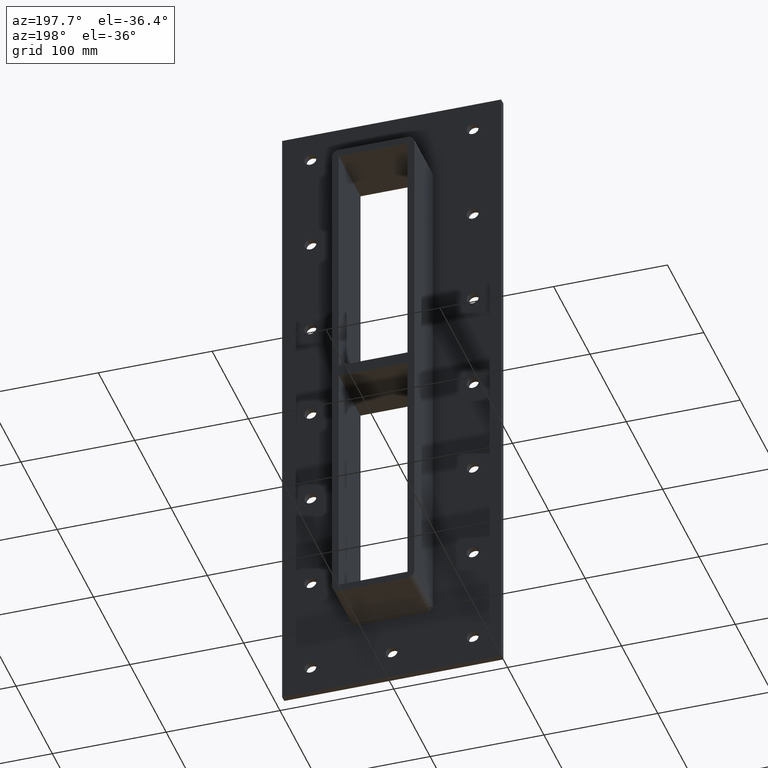
[diagram: clean part render]
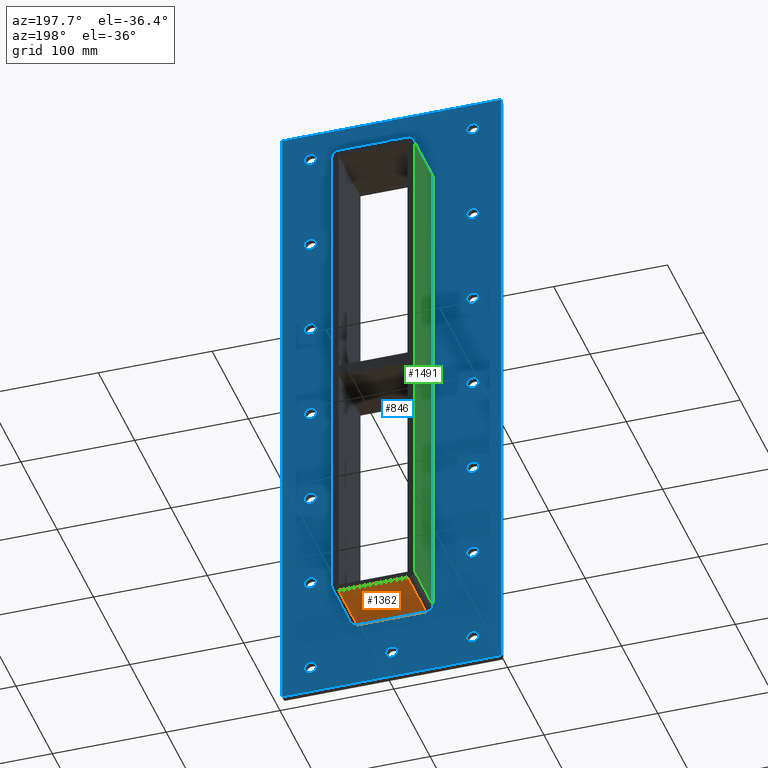
[diagram: same view with three faces highlighted in distinct colors, each labeled with its STEP entity id]
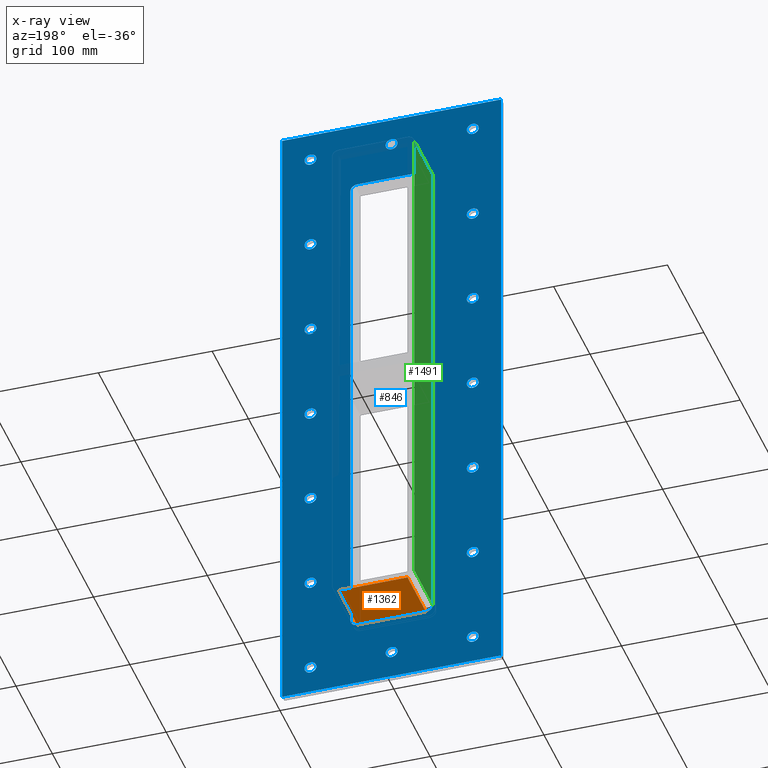
[diagram: x-ray of the same camera — body ghosted, the three highlighted faces saturated]
A machine part, auxiliary view with three faces highlighted in distinct colors.
The next image is the same camera in x-ray (body ghosted, the three faces saturated) — at least one of them is partly hidden behind the body in this view.
Their STEP definitions:

[orange] entity #1362 — the highlighted planar face has unit normal (0, 0, -1).
#776=CARTESIAN_POINT('',(-30.250000000000004,6.000000000000001,-229.00000000000006));
#777=VERTEX_POINT('',#776);
#787=CARTESIAN_POINT('',(30.250000000000004,6.000000000000001,-229.00000000000006));
#788=VERTEX_POINT('',#787);
#789=CARTESIAN_POINT('',(30.250000000000007,6.000000000000001,-229.00000000000006));
#790=DIRECTION('',(-1.0,0.0,0.0));
#791=VECTOR('',#790,60.5);
#792=LINE('',#789,#791);
#793=EDGE_CURVE('',#788,#777,#792,.T.);
#1271=CARTESIAN_POINT('',(30.250000000000004,57.0,-229.00000000000006));
#1272=VERTEX_POINT('',#1271);
#1273=CARTESIAN_POINT('',(30.250000000000004,6.000000000000001,-229.00000000000006));
#1274=DIRECTION('',(0.0,1.0,0.0));
#1275=VECTOR('',#1274,51.0);
#1276=LINE('',#1273,#1275);
#1277=EDGE_CURVE('',#788,#1272,#1276,.T.);
#1339=CARTESIAN_POINT('',(36.250000000000007,0.0,-229.00000000000006));
#1340=DIRECTION('',(0.0,0.0,-1.0));
#1341=DIRECTION('',(-1.0,0.0,0.0));
#1342=AXIS2_PLACEMENT_3D('',#1339,#1340,#1341);
#1343=PLANE('',#1342);
#1344=ORIENTED_EDGE('',*,*,#793,.T.);
#1345=CARTESIAN_POINT('',(-30.25,57.0,-229.00000000000006));
#1346=VERTEX_POINT('',#1345);
#1347=CARTESIAN_POINT('',(-30.250000000000004,57.0,-229.00000000000006));
#1348=DIRECTION('',(0.0,-1.0,0.0));
#1349=VECTOR('',#1348,51.0);
#1350=LINE('',#1347,#1349);
#1351=EDGE_CURVE('',#1346,#777,#1350,.T.);
#1352=ORIENTED_EDGE('',*,*,#1351,.F.);
#1353=CARTESIAN_POINT('',(30.250000000000007,57.0,-229.00000000000006));
#1354=DIRECTION('',(-1.0,0.0,0.0));
#1355=VECTOR('',#1354,60.5);
#1356=LINE('',#1353,#1355);
#1357=EDGE_CURVE('',#1272,#1346,#1356,.T.);
#1358=ORIENTED_EDGE('',*,*,#1357,.F.);
#1359=ORIENTED_EDGE('',*,*,#1277,.F.);
#1360=EDGE_LOOP('',(#1344,#1352,#1358,#1359));
#1361=FACE_OUTER_BOUND('',#1360,.T.);
#1362=ADVANCED_FACE('',(#1361),#1343,.T.);

[blue] entity #846 — the highlighted planar face has unit normal (0, 1, 0).
#73=CARTESIAN_POINT('',(-76.500000000000071,6.000000000000014,-263.99999999999994));
#74=VERTEX_POINT('',#73);
#75=CARTESIAN_POINT('',(-71.250000000000071,6.000000000000014,-263.99999999999994));
#76=DIRECTION('',(0.0,-1.0,0.0));
#77=DIRECTION('',(1.0,0.0,0.0));
#78=AXIS2_PLACEMENT_3D('',#75,#76,#77);
#79=CIRCLE('',#78,5.25);
#80=EDGE_CURVE('',#74,#74,#79,.T.);
#101=CARTESIAN_POINT('',(66.099999999999923,6.000000000000014,-175.99999999999997));
#102=VERTEX_POINT('',#101);
#103=CARTESIAN_POINT('',(71.349999999999923,6.000000000000014,-175.99999999999997));
#104=DIRECTION('',(0.0,-1.0,0.0));
#105=DIRECTION('',(1.0,0.0,0.0));
#106=AXIS2_PLACEMENT_3D('',#103,#104,#105);
#107=CIRCLE('',#106,5.25);
#108=EDGE_CURVE('',#102,#102,#107,.T.);
#129=CARTESIAN_POINT('',(-76.500000000000071,6.000000000000014,-175.99999999999997));
#130=VERTEX_POINT('',#129);
#131=CARTESIAN_POINT('',(-71.250000000000071,6.000000000000014,-175.99999999999997));
#132=DIRECTION('',(0.0,-1.0,0.0));
#133=DIRECTION('',(1.0,0.0,0.0));
#134=AXIS2_PLACEMENT_3D('',#131,#132,#133);
#135=CIRCLE('',#134,5.25);
#136=EDGE_CURVE('',#130,#130,#135,.T.);
#157=CARTESIAN_POINT('',(66.099999999999923,6.000000000000014,-87.999999999999972));
#158=VERTEX_POINT('',#157);
#159=CARTESIAN_POINT('',(71.349999999999923,6.000000000000014,-87.999999999999972));
#160=DIRECTION('',(0.0,-1.0,0.0));
#161=DIRECTION('',(1.0,0.0,0.0));
#162=AXIS2_PLACEMENT_3D('',#159,#160,#161);
#163=CIRCLE('',#162,5.25);
#164=EDGE_CURVE('',#158,#158,#163,.T.);
#185=CARTESIAN_POINT('',(-76.500000000000071,6.000000000000014,-87.999999999999972));
#186=VERTEX_POINT('',#185);
#187=CARTESIAN_POINT('',(-71.250000000000071,6.000000000000014,-87.999999999999972));
#188=DIRECTION('',(0.0,-1.0,0.0));
#189=DIRECTION('',(1.0,0.0,0.0));
#190=AXIS2_PLACEMENT_3D('',#187,#188,#189);
#191=CIRCLE('',#190,5.25);
#192=EDGE_CURVE('',#186,#186,#191,.T.);
#213=CARTESIAN_POINT('',(66.099999999999923,6.000000000000014,3.552714E-014));
#214=VERTEX_POINT('',#213);
#215=CARTESIAN_POINT('',(71.349999999999923,6.000000000000014,3.552714E-014));
#216=DIRECTION('',(0.0,-1.0,0.0));
#217=DIRECTION('',(1.0,0.0,0.0));
#218=AXIS2_PLACEMENT_3D('',#215,#216,#217);
#219=CIRCLE('',#218,5.25);
#220=EDGE_CURVE('',#214,#214,#219,.T.);
#241=CARTESIAN_POINT('',(-76.500000000000071,6.000000000000014,3.552714E-014));
#242=VERTEX_POINT('',#241);
#243=CARTESIAN_POINT('',(-71.250000000000071,6.000000000000014,3.552714E-014));
#244=DIRECTION('',(0.0,-1.0,0.0));
#245=DIRECTION('',(1.0,0.0,0.0));
#246=AXIS2_PLACEMENT_3D('',#243,#244,#245);
#247=CIRCLE('',#246,5.25);
#248=EDGE_CURVE('',#242,#242,#247,.T.);
#269=CARTESIAN_POINT('',(66.099999999999923,6.000000000000014,88.000000000000043));
#270=VERTEX_POINT('',#269);
#271=CARTESIAN_POINT('',(71.349999999999923,6.000000000000014,88.000000000000043));
#272=DIRECTION('',(0.0,-1.0,0.0));
#273=DIRECTION('',(1.0,0.0,0.0));
#274=AXIS2_PLACEMENT_3D('',#271,#272,#273);
#275=CIRCLE('',#274,5.25);
#276=EDGE_CURVE('',#270,#270,#275,.T.);
#297=CARTESIAN_POINT('',(-76.500000000000071,6.000000000000014,88.000000000000043));
#298=VERTEX_POINT('',#297);
#299=CARTESIAN_POINT('',(-71.250000000000071,6.000000000000014,88.000000000000043));
#300=DIRECTION('',(0.0,-1.0,0.0));
#301=DIRECTION('',(1.0,0.0,0.0));
#302=AXIS2_PLACEMENT_3D('',#299,#300,#301);
#303=CIRCLE('',#302,5.25);
#304=EDGE_CURVE('',#298,#298,#303,.T.);
#325=CARTESIAN_POINT('',(66.099999999999923,6.000000000000014,176.00000000000006));
#326=VERTEX_POINT('',#325);
#327=CARTESIAN_POINT('',(71.349999999999923,6.000000000000014,176.00000000000006));
#328=DIRECTION('',(0.0,-1.0,0.0));
#329=DIRECTION('',(1.0,0.0,0.0));
#330=AXIS2_PLACEMENT_3D('',#327,#328,#329);
#331=CIRCLE('',#330,5.25);
#332=EDGE_CURVE('',#326,#326,#331,.T.);
#353=CARTESIAN_POINT('',(-76.500000000000071,6.000000000000014,176.00000000000006));
#354=VERTEX_POINT('',#353);
#355=CARTESIAN_POINT('',(-71.250000000000071,6.000000000000014,176.00000000000006));
#356=DIRECTION('',(0.0,-1.0,0.0));
#357=DIRECTION('',(1.0,0.0,0.0));
#358=AXIS2_PLACEMENT_3D('',#355,#356,#357);
#359=CIRCLE('',#358,5.25);
#360=EDGE_CURVE('',#354,#354,#359,.T.);
#381=CARTESIAN_POINT('',(-5.200000000000076,6.000000000000014,264.00000000000006));
#382=VERTEX_POINT('',#381);
#383=CARTESIAN_POINT('',(0.049999999999928,6.000000000000014,264.00000000000006));
#384=DIRECTION('',(0.0,-1.0,0.0));
#385=DIRECTION('',(1.0,0.0,0.0));
#386=AXIS2_PLACEMENT_3D('',#383,#384,#385);
#387=CIRCLE('',#386,5.25);
#388=EDGE_CURVE('',#382,#382,#387,.T.);
#409=CARTESIAN_POINT('',(-5.200000000000076,6.000000000000014,-264.0));
#410=VERTEX_POINT('',#409);
#411=CARTESIAN_POINT('',(0.049999999999928,6.000000000000014,-264.0));
#412=DIRECTION('',(0.0,-1.0,0.0));
#413=DIRECTION('',(1.0,0.0,0.0));
#414=AXIS2_PLACEMENT_3D('',#411,#412,#413);
#415=CIRCLE('',#414,5.25);
#416=EDGE_CURVE('',#410,#410,#415,.T.);
#437=CARTESIAN_POINT('',(66.099999999999923,6.000000000000014,-264.0));
#438=VERTEX_POINT('',#437);
#439=CARTESIAN_POINT('',(71.349999999999923,6.000000000000014,-264.0));
#440=DIRECTION('',(0.0,-1.0,0.0));
#441=DIRECTION('',(1.0,0.0,0.0));
#442=AXIS2_PLACEMENT_3D('',#439,#440,#441);
#443=CIRCLE('',#442,5.25);
#444=EDGE_CURVE('',#438,#438,#443,.T.);
#465=CARTESIAN_POINT('',(-76.500000000000071,6.000000000000014,264.00000000000006));
#466=VERTEX_POINT('',#465);
#467=CARTESIAN_POINT('',(-71.250000000000071,6.000000000000014,264.00000000000006));
#468=DIRECTION('',(0.0,-1.0,0.0));
#469=DIRECTION('',(1.0,0.0,0.0));
#470=AXIS2_PLACEMENT_3D('',#467,#468,#469);
#471=CIRCLE('',#470,5.25);
#472=EDGE_CURVE('',#466,#466,#471,.T.);
#493=CARTESIAN_POINT('',(66.099999999999923,6.000000000000014,264.00000000000006));
#494=VERTEX_POINT('',#493);
#495=CARTESIAN_POINT('',(71.349999999999923,6.000000000000014,264.00000000000006));
#496=DIRECTION('',(0.0,-1.0,0.0));
#497=DIRECTION('',(1.0,0.0,0.0));
#498=AXIS2_PLACEMENT_3D('',#495,#496,#497);
#499=CIRCLE('',#498,5.25);
#500=EDGE_CURVE('',#494,#494,#499,.T.);
#689=CARTESIAN_POINT('',(0.0,6.000000000000001,4.099108E-014));
#690=DIRECTION('',(0.0,1.0,0.0));
#691=DIRECTION('',(0.0,0.0,1.0));
#692=AXIS2_PLACEMENT_3D('',#689,#690,#691);
#693=PLANE('',#692);
#694=CARTESIAN_POINT('',(-96.25,6.000000000000001,289.00000000000006));
#695=VERTEX_POINT('',#694);
#696=CARTESIAN_POINT('',(96.25,6.000000000000001,289.00000000000006));
#697=VERTEX_POINT('',#696);
#698=CARTESIAN_POINT('',(-96.25,6.000000000000001,289.00000000000006));
#699=DIRECTION('',(1.0,0.0,0.0));
#700=VECTOR('',#699,192.5);
#701=LINE('',#698,#700);
#702=EDGE_CURVE('',#695,#697,#701,.T.);
#703=ORIENTED_EDGE('',*,*,#702,.T.);
#704=CARTESIAN_POINT('',(96.25,6.000000000000001,-289.0));
#705=VERTEX_POINT('',#704);
#706=CARTESIAN_POINT('',(96.25,6.000000000000001,289.00000000000006));
#707=DIRECTION('',(0.0,0.0,-1.0));
#708=VECTOR('',#707,578.0);
#709=LINE('',#706,#708);
#710=EDGE_CURVE('',#697,#705,#709,.T.);
#711=ORIENTED_EDGE('',*,*,#710,.T.);
#712=CARTESIAN_POINT('',(-96.25,6.000000000000001,-289.0));
#713=VERTEX_POINT('',#712);
#714=CARTESIAN_POINT('',(96.25,6.000000000000001,-289.0));
#715=DIRECTION('',(-1.0,0.0,0.0));
#716=VECTOR('',#715,192.5);
#717=LINE('',#714,#716);
#718=EDGE_CURVE('',#705,#713,#717,.T.);
#719=ORIENTED_EDGE('',*,*,#718,.T.);
#720=CARTESIAN_POINT('',(-96.25,6.000000000000001,-289.0));
#721=DIRECTION('',(0.0,0.0,1.0));
#722=VECTOR('',#721,578.0);
#723=LINE('',#720,#722);
#724=EDGE_CURVE('',#713,#695,#723,.T.);
#725=ORIENTED_EDGE('',*,*,#724,.T.);
#726=EDGE_LOOP('',(#703,#711,#719,#725));
#727=FACE_OUTER_BOUND('',#726,.T.);
#728=ORIENTED_EDGE('',*,*,#80,.T.);
#729=EDGE_LOOP('',(#728));
#730=FACE_BOUND('',#729,.T.);
#731=ORIENTED_EDGE('',*,*,#108,.T.);
#732=EDGE_LOOP('',(#731));
#733=FACE_BOUND('',#732,.T.);
#734=ORIENTED_EDGE('',*,*,#136,.T.);
#735=EDGE_LOOP('',(#734));
#736=FACE_BOUND('',#735,.T.);
#737=ORIENTED_EDGE('',*,*,#164,.T.);
#738=EDGE_LOOP('',(#737));
#739=FACE_BOUND('',#738,.T.);
#740=ORIENTED_EDGE('',*,*,#192,.T.);
#741=EDGE_LOOP('',(#740));
#742=FACE_BOUND('',#741,.T.);
#743=ORIENTED_EDGE('',*,*,#220,.T.);
#744=EDGE_LOOP('',(#743));
#745=FACE_BOUND('',#744,.T.);
#746=ORIENTED_EDGE('',*,*,#248,.T.);
#747=EDGE_LOOP('',(#746));
#748=FACE_BOUND('',#747,.T.);
#749=ORIENTED_EDGE('',*,*,#276,.T.);
#750=EDGE_LOOP('',(#749));
#751=FACE_BOUND('',#750,.T.);
#752=ORIENTED_EDGE('',*,*,#304,.T.);
#753=EDGE_LOOP('',(#752));
#754=FACE_BOUND('',#753,.T.);
#755=ORIENTED_EDGE('',*,*,#332,.T.);
#756=EDGE_LOOP('',(#755));
#757=FACE_BOUND('',#756,.T.);
#758=ORIENTED_EDGE('',*,*,#360,.T.);
#759=EDGE_LOOP('',(#758));
#760=FACE_BOUND('',#759,.T.);
#761=ORIENTED_EDGE('',*,*,#388,.T.);
#762=EDGE_LOOP('',(#761));
#763=FACE_BOUND('',#762,.T.);
#764=ORIENTED_EDGE('',*,*,#416,.T.);
#765=EDGE_LOOP('',(#764));
#766=FACE_BOUND('',#765,.T.);
#767=ORIENTED_EDGE('',*,*,#444,.T.);
#768=EDGE_LOOP('',(#767));
#769=FACE_BOUND('',#768,.T.);
#770=ORIENTED_EDGE('',*,*,#472,.T.);
#771=EDGE_LOOP('',(#770));
#772=FACE_BOUND('',#771,.T.);
#773=ORIENTED_EDGE('',*,*,#500,.T.);
#774=EDGE_LOOP('',(#773));
#775=FACE_BOUND('',#774,.T.);
#776=CARTESIAN_POINT('',(-30.250000000000004,6.000000000000001,-229.00000000000006));
#777=VERTEX_POINT('',#776);
#778=CARTESIAN_POINT('',(-36.250000000000007,6.000000000000001,-223.00000000000006));
#779=VERTEX_POINT('',#778);
#780=CARTESIAN_POINT('',(-30.250000000000004,6.000000000000001,-223.00000000000006));
#781=DIRECTION('',(0.0,1.0,0.0));
#782=DIRECTION('',(-0.707106781186546,0.0,-0.707106781186549));
#783=AXIS2_PLACEMENT_3D('',#780,#781,#782);
#784=CIRCLE('',#783,6.000000000000001);
#785=EDGE_CURVE('',#777,#779,#784,.T.);
#786=ORIENTED_EDGE('',*,*,#785,.F.);
#787=CARTESIAN_POINT('',(30.250000000000004,6.000000000000001,-229.00000000000006));
#788=VERTEX_POINT('',#787);
#789=CARTESIAN_POINT('',(30.250000000000007,6.000000000000001,-229.00000000000006));
#790=DIRECTION('',(-1.0,0.0,0.0));
#791=VECTOR('',#790,60.5);
#792=LINE('',#789,#791);
#793=EDGE_CURVE('',#788,#777,#792,.T.);
#794=ORIENTED_EDGE('',*,*,#793,.F.);
#795=CARTESIAN_POINT('',(36.250000000000007,6.000000000000001,-223.00000000000006));
#796=VERTEX_POINT('',#795);
#797=CARTESIAN_POINT('',(30.250000000000004,6.000000000000001,-223.00000000000006));
#798=DIRECTION('',(0.0,1.0,0.0));
#799=DIRECTION('',(0.707106781186546,0.0,-0.707106781186549));
#800=AXIS2_PLACEMENT_3D('',#797,#798,#799);
#801=CIRCLE('',#800,6.000000000000001);
#802=EDGE_CURVE('',#796,#788,#801,.T.);
#803=ORIENTED_EDGE('',*,*,#802,.F.);
#804=CARTESIAN_POINT('',(36.250000000000007,6.000000000000001,223.00000000000006));
#805=VERTEX_POINT('',#804);
#806=CARTESIAN_POINT('',(36.250000000000007,6.000000000000001,223.00000000000006));
#807=DIRECTION('',(0.0,0.0,-1.0));
#808=VECTOR('',#807,446.00000000000006);
#809=LINE('',#806,#808);
#810=EDGE_CURVE('',#805,#796,#809,.T.);
#811=ORIENTED_EDGE('',*,*,#810,.F.);
#812=CARTESIAN_POINT('',(30.250000000000004,6.000000000000001,229.00000000000006));
#813=VERTEX_POINT('',#812);
#814=CARTESIAN_POINT('',(30.250000000000004,6.000000000000001,223.00000000000006));
#815=DIRECTION('',(0.0,1.0,0.0));
#816=DIRECTION('',(0.707106781186546,0.0,0.707106781186549));
#817=AXIS2_PLACEMENT_3D('',#814,#815,#816);
#818=CIRCLE('',#817,6.000000000000001);
#819=EDGE_CURVE('',#813,#805,#818,.T.);
#820=ORIENTED_EDGE('',*,*,#819,.F.);
#821=CARTESIAN_POINT('',(-30.250000000000004,6.000000000000001,229.00000000000006));
#822=VERTEX_POINT('',#821);
#823=CARTESIAN_POINT('',(-30.250000000000007,6.000000000000001,229.00000000000006));
#824=DIRECTION('',(1.0,0.0,0.0));
#825=VECTOR('',#824,60.5);
#826=LINE('',#823,#825);
#827=EDGE_CURVE('',#822,#813,#826,.T.);
#828=ORIENTED_EDGE('',*,*,#827,.F.);
#829=CARTESIAN_POINT('',(-36.250000000000007,6.000000000000001,223.00000000000006));
#830=VERTEX_POINT('',#829);
#831=CARTESIAN_POINT('',(-30.250000000000004,6.000000000000001,223.00000000000006));
#832=DIRECTION('',(0.0,1.0,0.0));
#833=DIRECTION('',(-0.707106781186546,0.0,0.707106781186549));
#834=AXIS2_PLACEMENT_3D('',#831,#832,#833);
#835=CIRCLE('',#834,6.000000000000001);
#836=EDGE_CURVE('',#830,#822,#835,.T.);
#837=ORIENTED_EDGE('',*,*,#836,.F.);
#838=CARTESIAN_POINT('',(-36.250000000000007,6.000000000000001,-223.00000000000006));
#839=DIRECTION('',(0.0,0.0,1.0));
#840=VECTOR('',#839,446.00000000000011);
#841=LINE('',#838,#840);
#842=EDGE_CURVE('',#779,#830,#841,.T.);
#843=ORIENTED_EDGE('',*,*,#842,.F.);
#844=EDGE_LOOP('',(#786,#794,#803,#811,#820,#828,#837,#843));
#845=FACE_BOUND('',#844,.T.);
#846=ADVANCED_FACE('',(#727,#730,#733,#736,#739,#742,#745,#748,#751,#754,#757,#760,#763,#766,#769,#772,#775,#845),#693,.T.);

[green] entity #1491 — the highlighted planar face has unit normal (-1, 0, 0).
#778=CARTESIAN_POINT('',(-36.250000000000007,6.000000000000001,-223.00000000000006));
#779=VERTEX_POINT('',#778);
#829=CARTESIAN_POINT('',(-36.250000000000007,6.000000000000001,223.00000000000006));
#830=VERTEX_POINT('',#829);
#838=CARTESIAN_POINT('',(-36.250000000000007,6.000000000000001,-223.00000000000006));
#839=DIRECTION('',(0.0,0.0,1.0));
#840=VECTOR('',#839,446.00000000000011);
#841=LINE('',#838,#840);
#842=EDGE_CURVE('',#779,#830,#841,.T.);
#1449=CARTESIAN_POINT('',(-36.250000000000007,57.0,-223.00000000000006));
#1450=VERTEX_POINT('',#1449);
#1451=CARTESIAN_POINT('',(-36.250000000000007,6.000000000000001,-223.00000000000006));
#1452=DIRECTION('',(0.0,1.0,0.0));
#1453=VECTOR('',#1452,51.0);
#1454=LINE('',#1451,#1453);
#1455=EDGE_CURVE('',#779,#1450,#1454,.T.);
#1468=CARTESIAN_POINT('',(-36.250000000000007,0.0,-229.00000000000006));
#1469=DIRECTION('',(-1.0,0.0,0.0));
#1470=DIRECTION('',(0.0,0.0,1.0));
#1471=AXIS2_PLACEMENT_3D('',#1468,#1469,#1470);
#1472=PLANE('',#1471);
#1473=ORIENTED_EDGE('',*,*,#842,.T.);
#1474=CARTESIAN_POINT('',(-36.250000000000007,57.0,223.00000000000006));
#1475=VERTEX_POINT('',#1474);
#1476=CARTESIAN_POINT('',(-36.250000000000007,57.0,223.00000000000006));
#1477=DIRECTION('',(0.0,-1.0,0.0));
#1478=VECTOR('',#1477,51.0);
#1479=LINE('',#1476,#1478);
#1480=EDGE_CURVE('',#1475,#830,#1479,.T.);
#1481=ORIENTED_EDGE('',*,*,#1480,.F.);
#1482=CARTESIAN_POINT('',(-36.250000000000007,57.0,-223.00000000000006));
#1483=DIRECTION('',(0.0,0.0,1.0));
#1484=VECTOR('',#1483,446.00000000000011);
#1485=LINE('',#1482,#1484);
#1486=EDGE_CURVE('',#1450,#1475,#1485,.T.);
#1487=ORIENTED_EDGE('',*,*,#1486,.F.);
#1488=ORIENTED_EDGE('',*,*,#1455,.F.);
#1489=EDGE_LOOP('',(#1473,#1481,#1487,#1488));
#1490=FACE_OUTER_BOUND('',#1489,.T.);
#1491=ADVANCED_FACE('',(#1490),#1472,.T.);